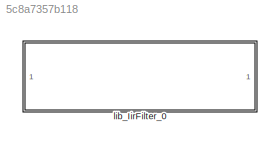
MODEL slx_5c8a7357b118
KIND library
CONFIG AbsTol = auto
CONFIG EnableMultiTasking = off
CONFIG FixedStep = auto
CONFIG MaxStep = auto
CONFIG MinStep = auto
CONFIG RelTol = 1e-3
CONFIG SampleTimeConstraint = Unconstrained
CONFIG SolverName = VariableStepAuto
CONFIG StartTime = 0.0
CONFIG StopTime = 10.0
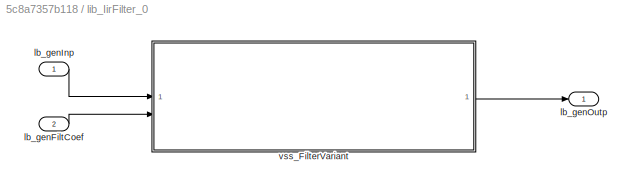
BLOCK [SubSystem] lib_IirFilter_0
BLOCK [Inport] lib_IirFilter_0/lb_genFiltCoef
  Port = 2
BLOCK [Inport] lib_IirFilter_0/lb_genInp
BLOCK [Outport] lib_IirFilter_0/lb_genOutp
  VectorParamsAs1DForOutWhenUnconnected = off
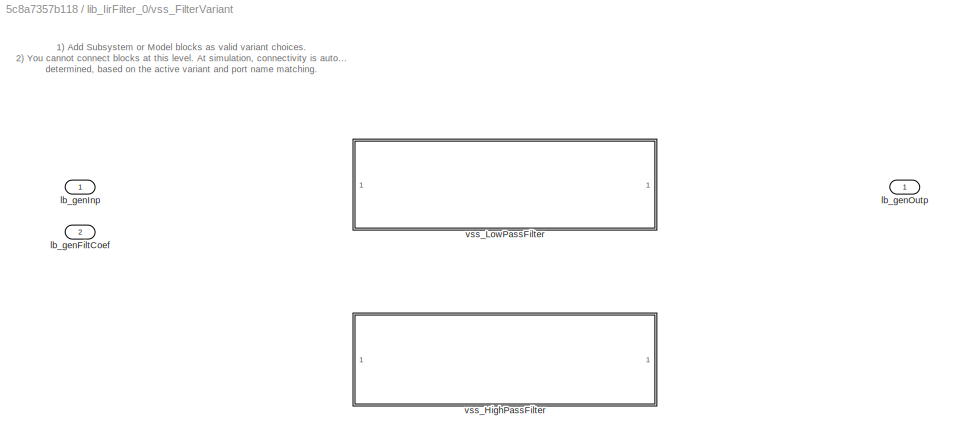
BLOCK [SubSystem] lib_IirFilter_0/vss_FilterVariant
  LabelModeActiveChoice = lb_parLowPassModeLbl
  Variant = on
  VariantControlMode = label
BLOCK [Inport] lib_IirFilter_0/vss_FilterVariant/lb_genFiltCoef
  Port = 2
BLOCK [Inport] lib_IirFilter_0/vss_FilterVariant/lb_genInp
BLOCK [Outport] lib_IirFilter_0/vss_FilterVariant/lb_genOutp
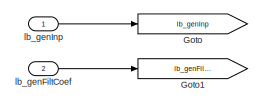
[diagram: lib_IirFilter_0/vss_FilterVariant/vss_HighPassFilter - part 1/3, top left region]
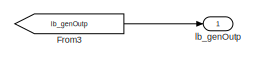
[diagram: lib_IirFilter_0/vss_FilterVariant/vss_HighPassFilter - part 2/3, top right region]
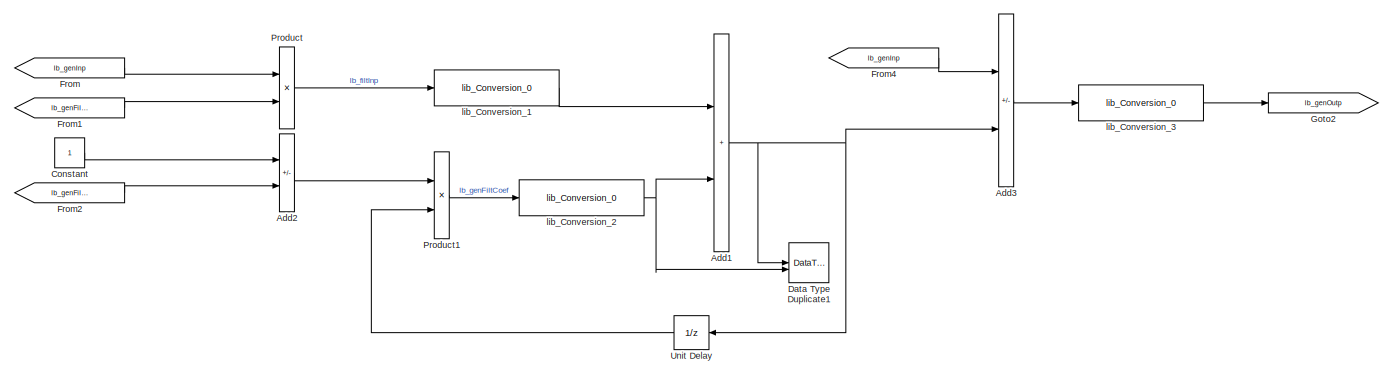
[diagram: lib_IirFilter_0/vss_FilterVariant/vss_HighPassFilter - part 3/3, central region]
BLOCK [SubSystem] lib_IirFilter_0/vss_FilterVariant/vss_HighPassFilter
  VariantControl = lb_parHighPassModeLbl
BLOCK [Sum] lib_IirFilter_0/vss_FilterVariant/vss_HighPassFilter/Add1
  IconShape = rectangular
  OutDataTypeStr = Inherit: Inherit via back propagation
  RndMeth = Simplest
BLOCK [Sum] lib_IirFilter_0/vss_FilterVariant/vss_HighPassFilter/Add2
  IconShape = rectangular
  Inputs = +-
  OutDataTypeStr = Inherit: Same as first input
  RndMeth = Simplest
BLOCK [Sum] lib_IirFilter_0/vss_FilterVariant/vss_HighPassFilter/Add3
  IconShape = rectangular
  Inputs = +-
  OutDataTypeStr = Inherit: Inherit via back propagation
  RndMeth = Simplest
BLOCK [Constant] lib_IirFilter_0/vss_FilterVariant/vss_HighPassFilter/Constant
  OutDataTypeStr = fixdt(0,16,2^-15,0)
BLOCK [DataTypeDuplicate] lib_IirFilter_0/vss_FilterVariant/vss_HighPassFilter/Data Type Duplicate1
BLOCK [From] lib_IirFilter_0/vss_FilterVariant/vss_HighPassFilter/From
  GotoTag = lb_genInp
BLOCK [From] lib_IirFilter_0/vss_FilterVariant/vss_HighPassFilter/From1
  GotoTag = lb_genFiltCoef
BLOCK [From] lib_IirFilter_0/vss_FilterVariant/vss_HighPassFilter/From2
  GotoTag = lb_genFiltCoef
BLOCK [From] lib_IirFilter_0/vss_FilterVariant/vss_HighPassFilter/From3
  GotoTag = lb_genOutp
BLOCK [From] lib_IirFilter_0/vss_FilterVariant/vss_HighPassFilter/From4
  GotoTag = lb_genInp
BLOCK [Goto] lib_IirFilter_0/vss_FilterVariant/vss_HighPassFilter/Goto
  GotoTag = lb_genInp
BLOCK [Goto] lib_IirFilter_0/vss_FilterVariant/vss_HighPassFilter/Goto1
  GotoTag = lb_genFiltCoef
BLOCK [Goto] lib_IirFilter_0/vss_FilterVariant/vss_HighPassFilter/Goto2
  GotoTag = lb_genOutp
BLOCK [Product] lib_IirFilter_0/vss_FilterVariant/vss_HighPassFilter/Product
  OutDataTypeStr = Inherit: Inherit via back propagation
  RndMeth = Simplest
BLOCK [Product] lib_IirFilter_0/vss_FilterVariant/vss_HighPassFilter/Product1
  OutDataTypeStr = Inherit: Inherit via back propagation
  RndMeth = Simplest
BLOCK [UnitDelay] lib_IirFilter_0/vss_FilterVariant/vss_HighPassFilter/Unit Delay
  HasFrameUpgradeWarning = on
  SampleTime = -1
BLOCK [Inport] lib_IirFilter_0/vss_FilterVariant/vss_HighPassFilter/lb_genFiltCoef
  Port = 2
BLOCK [Inport] lib_IirFilter_0/vss_FilterVariant/vss_HighPassFilter/lb_genInp
BLOCK [Outport] lib_IirFilter_0/vss_FilterVariant/vss_HighPassFilter/lb_genOutp
  VectorParamsAs1DForOutWhenUnconnected = off
BLOCK [Reference] lib_IirFilter_0/vss_FilterVariant/vss_HighPassFilter/lib_Conversion_1  REF=lib_conversion/lib_Conversion_0  (lib defined in slx_7f5c0202220d)
  SourceBlock = lib_conversion/lib_Conversion_0
BLOCK [Reference] lib_IirFilter_0/vss_FilterVariant/vss_HighPassFilter/lib_Conversion_2  REF=lib_conversion/lib_Conversion_0  (lib defined in slx_7f5c0202220d)
  SourceBlock = lib_conversion/lib_Conversion_0
BLOCK [Reference] lib_IirFilter_0/vss_FilterVariant/vss_HighPassFilter/lib_Conversion_3  REF=lib_conversion/lib_Conversion_0  (lib defined in slx_7f5c0202220d)
  SourceBlock = lib_conversion/lib_Conversion_0
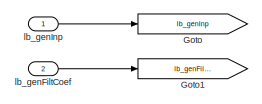
[diagram: lib_IirFilter_0/vss_FilterVariant/vss_LowPassFilter - part 1/2, top left region]
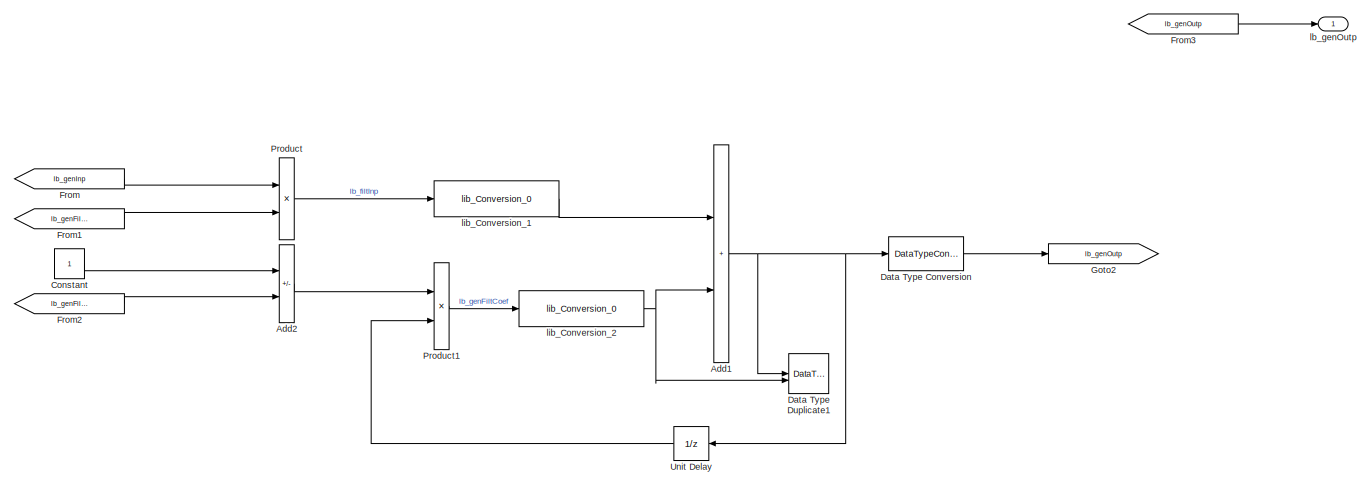
[diagram: lib_IirFilter_0/vss_FilterVariant/vss_LowPassFilter - part 2/2, most of the canvas]
BLOCK [SubSystem] lib_IirFilter_0/vss_FilterVariant/vss_LowPassFilter
  VariantControl = lb_parLowPassModeLbl
BLOCK [Sum] lib_IirFilter_0/vss_FilterVariant/vss_LowPassFilter/Add1
  IconShape = rectangular
  OutDataTypeStr = Inherit: Inherit via back propagation
  RndMeth = Simplest
BLOCK [Sum] lib_IirFilter_0/vss_FilterVariant/vss_LowPassFilter/Add2
  IconShape = rectangular
  Inputs = +-
  OutDataTypeStr = Inherit: Same as first input
  RndMeth = Simplest
BLOCK [Constant] lib_IirFilter_0/vss_FilterVariant/vss_LowPassFilter/Constant
  OutDataTypeStr = fixdt(0,16,2^-15,0)
BLOCK [DataTypeConversion] lib_IirFilter_0/vss_FilterVariant/vss_LowPassFilter/Data Type Conversion
  OutDataTypeStr = lb_parOutpDataType
  RndMeth = Floor
  SaturateOnIntegerOverflow = off
BLOCK [DataTypeDuplicate] lib_IirFilter_0/vss_FilterVariant/vss_LowPassFilter/Data Type Duplicate1
BLOCK [From] lib_IirFilter_0/vss_FilterVariant/vss_LowPassFilter/From
  GotoTag = lb_genInp
BLOCK [From] lib_IirFilter_0/vss_FilterVariant/vss_LowPassFilter/From1
  GotoTag = lb_genFiltCoef
BLOCK [From] lib_IirFilter_0/vss_FilterVariant/vss_LowPassFilter/From2
  GotoTag = lb_genFiltCoef
BLOCK [From] lib_IirFilter_0/vss_FilterVariant/vss_LowPassFilter/From3
  GotoTag = lb_genOutp
BLOCK [Goto] lib_IirFilter_0/vss_FilterVariant/vss_LowPassFilter/Goto
  GotoTag = lb_genInp
BLOCK [Goto] lib_IirFilter_0/vss_FilterVariant/vss_LowPassFilter/Goto1
  GotoTag = lb_genFiltCoef
BLOCK [Goto] lib_IirFilter_0/vss_FilterVariant/vss_LowPassFilter/Goto2
  GotoTag = lb_genOutp
BLOCK [Product] lib_IirFilter_0/vss_FilterVariant/vss_LowPassFilter/Product
  OutDataTypeStr = Inherit: Inherit via back propagation
  RndMeth = Simplest
BLOCK [Product] lib_IirFilter_0/vss_FilterVariant/vss_LowPassFilter/Product1
  OutDataTypeStr = Inherit: Inherit via back propagation
  RndMeth = Simplest
BLOCK [UnitDelay] lib_IirFilter_0/vss_FilterVariant/vss_LowPassFilter/Unit Delay
  HasFrameUpgradeWarning = on
  SampleTime = -1
BLOCK [Inport] lib_IirFilter_0/vss_FilterVariant/vss_LowPassFilter/lb_genFiltCoef
  Port = 2
BLOCK [Inport] lib_IirFilter_0/vss_FilterVariant/vss_LowPassFilter/lb_genInp
BLOCK [Outport] lib_IirFilter_0/vss_FilterVariant/vss_LowPassFilter/lb_genOutp
  VectorParamsAs1DForOutWhenUnconnected = off
BLOCK [Reference] lib_IirFilter_0/vss_FilterVariant/vss_LowPassFilter/lib_Conversion_1  REF=lib_conversion/lib_Conversion_0  (lib defined in slx_7f5c0202220d)
  SourceBlock = lib_conversion/lib_Conversion_0
BLOCK [Reference] lib_IirFilter_0/vss_FilterVariant/vss_LowPassFilter/lib_Conversion_2  REF=lib_conversion/lib_Conversion_0  (lib defined in slx_7f5c0202220d)
  SourceBlock = lib_conversion/lib_Conversion_0
ANNOTATION lib_IirFilter_0/vss_FilterVariant: 1) Add Subsystem or Model blocks as valid variant choices. 2) You cannot connect blocks at this level. At simulation, connectivity is automatically determined, based on the active variant and port name matching.
LINE lib_IirFilter_0/lb_genFiltCoef:1 -> lib_IirFilter_0/vss_FilterVariant:2
LINE lib_IirFilter_0/lb_genInp:1 -> lib_IirFilter_0/vss_FilterVariant:1
NET lib_IirFilter_0/vss_FilterVariant/vss_HighPassFilter/Add1:1 -> lib_IirFilter_0/vss_FilterVariant/vss_HighPassFilter/Add3:2, lib_IirFilter_0/vss_FilterVariant/vss_HighPassFilter/Data Type Duplicate1:1, lib_IirFilter_0/vss_FilterVariant/vss_HighPassFilter/Unit Delay:1
LINE lib_IirFilter_0/vss_FilterVariant/vss_HighPassFilter/Add2:1 -> lib_IirFilter_0/vss_FilterVariant/vss_HighPassFilter/Product1:1
LINE lib_IirFilter_0/vss_FilterVariant/vss_HighPassFilter/Add3:1 -> lib_IirFilter_0/vss_FilterVariant/vss_HighPassFilter/lib_Conversion_3:1
LINE lib_IirFilter_0/vss_FilterVariant/vss_HighPassFilter/Constant:1 -> lib_IirFilter_0/vss_FilterVariant/vss_HighPassFilter/Add2:1
LINE lib_IirFilter_0/vss_FilterVariant/vss_HighPassFilter/From1:1 -> lib_IirFilter_0/vss_FilterVariant/vss_HighPassFilter/Product:2
LINE lib_IirFilter_0/vss_FilterVariant/vss_HighPassFilter/From2:1 -> lib_IirFilter_0/vss_FilterVariant/vss_HighPassFilter/Add2:2
LINE lib_IirFilter_0/vss_FilterVariant/vss_HighPassFilter/From3:1 -> lib_IirFilter_0/vss_FilterVariant/vss_HighPassFilter/lb_genOutp:1
LINE lib_IirFilter_0/vss_FilterVariant/vss_HighPassFilter/From4:1 -> lib_IirFilter_0/vss_FilterVariant/vss_HighPassFilter/Add3:1
LINE lib_IirFilter_0/vss_FilterVariant/vss_HighPassFilter/From:1 -> lib_IirFilter_0/vss_FilterVariant/vss_HighPassFilter/Product:1
LINE lib_IirFilter_0/vss_FilterVariant/vss_HighPassFilter/Product1:1 -> lib_IirFilter_0/vss_FilterVariant/vss_HighPassFilter/lib_Conversion_2:1
LINE lib_IirFilter_0/vss_FilterVariant/vss_HighPassFilter/Product:1 -> lib_IirFilter_0/vss_FilterVariant/vss_HighPassFilter/lib_Conversion_1:1
LINE lib_IirFilter_0/vss_FilterVariant/vss_HighPassFilter/Unit Delay:1 -> lib_IirFilter_0/vss_FilterVariant/vss_HighPassFilter/Product1:2
LINE lib_IirFilter_0/vss_FilterVariant/vss_HighPassFilter/lb_genFiltCoef:1 -> lib_IirFilter_0/vss_FilterVariant/vss_HighPassFilter/Goto1:1
LINE lib_IirFilter_0/vss_FilterVariant/vss_HighPassFilter/lb_genInp:1 -> lib_IirFilter_0/vss_FilterVariant/vss_HighPassFilter/Goto:1
LINE lib_IirFilter_0/vss_FilterVariant/vss_HighPassFilter/lib_Conversion_1:1 -> lib_IirFilter_0/vss_FilterVariant/vss_HighPassFilter/Add1:1
NET lib_IirFilter_0/vss_FilterVariant/vss_HighPassFilter/lib_Conversion_2:1 -> lib_IirFilter_0/vss_FilterVariant/vss_HighPassFilter/Add1:2, lib_IirFilter_0/vss_FilterVariant/vss_HighPassFilter/Data Type Duplicate1:2
LINE lib_IirFilter_0/vss_FilterVariant/vss_HighPassFilter/lib_Conversion_3:1 -> lib_IirFilter_0/vss_FilterVariant/vss_HighPassFilter/Goto2:1
NET lib_IirFilter_0/vss_FilterVariant/vss_LowPassFilter/Add1:1 -> lib_IirFilter_0/vss_FilterVariant/vss_LowPassFilter/Data Type Conversion:1, lib_IirFilter_0/vss_FilterVariant/vss_LowPassFilter/Data Type Duplicate1:1, lib_IirFilter_0/vss_FilterVariant/vss_LowPassFilter/Unit Delay:1
LINE lib_IirFilter_0/vss_FilterVariant/vss_LowPassFilter/Add2:1 -> lib_IirFilter_0/vss_FilterVariant/vss_LowPassFilter/Product1:1
LINE lib_IirFilter_0/vss_FilterVariant/vss_LowPassFilter/Constant:1 -> lib_IirFilter_0/vss_FilterVariant/vss_LowPassFilter/Add2:1
LINE lib_IirFilter_0/vss_FilterVariant/vss_LowPassFilter/Data Type Conversion:1 -> lib_IirFilter_0/vss_FilterVariant/vss_LowPassFilter/Goto2:1
LINE lib_IirFilter_0/vss_FilterVariant/vss_LowPassFilter/From1:1 -> lib_IirFilter_0/vss_FilterVariant/vss_LowPassFilter/Product:2
LINE lib_IirFilter_0/vss_FilterVariant/vss_LowPassFilter/From2:1 -> lib_IirFilter_0/vss_FilterVariant/vss_LowPassFilter/Add2:2
LINE lib_IirFilter_0/vss_FilterVariant/vss_LowPassFilter/From3:1 -> lib_IirFilter_0/vss_FilterVariant/vss_LowPassFilter/lb_genOutp:1
LINE lib_IirFilter_0/vss_FilterVariant/vss_LowPassFilter/From:1 -> lib_IirFilter_0/vss_FilterVariant/vss_LowPassFilter/Product:1
LINE lib_IirFilter_0/vss_FilterVariant/vss_LowPassFilter/Product1:1 -> lib_IirFilter_0/vss_FilterVariant/vss_LowPassFilter/lib_Conversion_2:1
LINE lib_IirFilter_0/vss_FilterVariant/vss_LowPassFilter/Product:1 -> lib_IirFilter_0/vss_FilterVariant/vss_LowPassFilter/lib_Conversion_1:1
LINE lib_IirFilter_0/vss_FilterVariant/vss_LowPassFilter/Unit Delay:1 -> lib_IirFilter_0/vss_FilterVariant/vss_LowPassFilter/Product1:2
LINE lib_IirFilter_0/vss_FilterVariant/vss_LowPassFilter/lb_genFiltCoef:1 -> lib_IirFilter_0/vss_FilterVariant/vss_LowPassFilter/Goto1:1
LINE lib_IirFilter_0/vss_FilterVariant/vss_LowPassFilter/lb_genInp:1 -> lib_IirFilter_0/vss_FilterVariant/vss_LowPassFilter/Goto:1
LINE lib_IirFilter_0/vss_FilterVariant/vss_LowPassFilter/lib_Conversion_1:1 -> lib_IirFilter_0/vss_FilterVariant/vss_LowPassFilter/Add1:1
NET lib_IirFilter_0/vss_FilterVariant/vss_LowPassFilter/lib_Conversion_2:1 -> lib_IirFilter_0/vss_FilterVariant/vss_LowPassFilter/Add1:2, lib_IirFilter_0/vss_FilterVariant/vss_LowPassFilter/Data Type Duplicate1:2
LINE lib_IirFilter_0/vss_FilterVariant:1 -> lib_IirFilter_0/lb_genOutp:1
note: NET lines group one-source signal fan-out (src -> all destinations, sorted); 1:1 wires keep LINE
